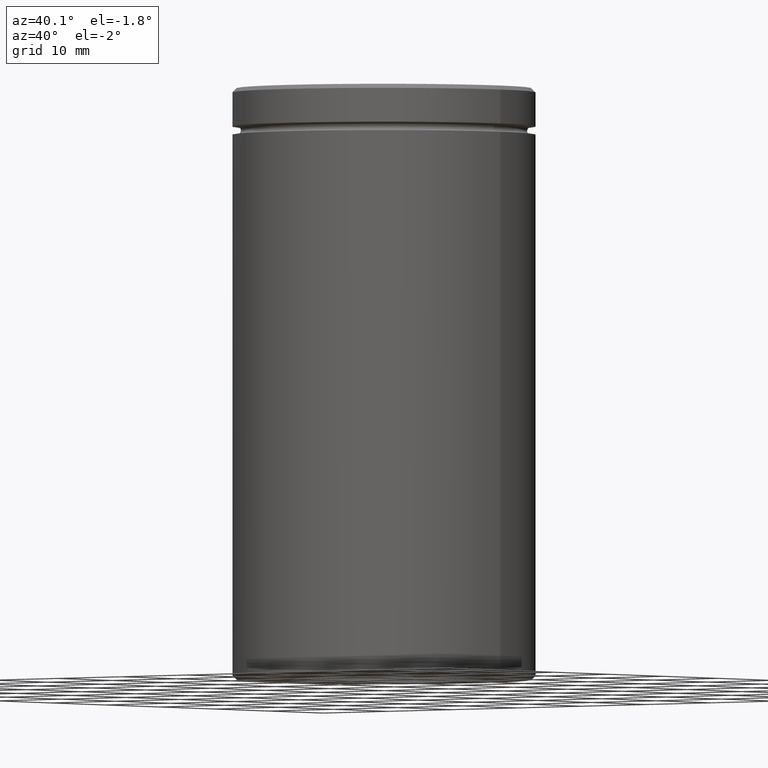
[diagram: clean part render]
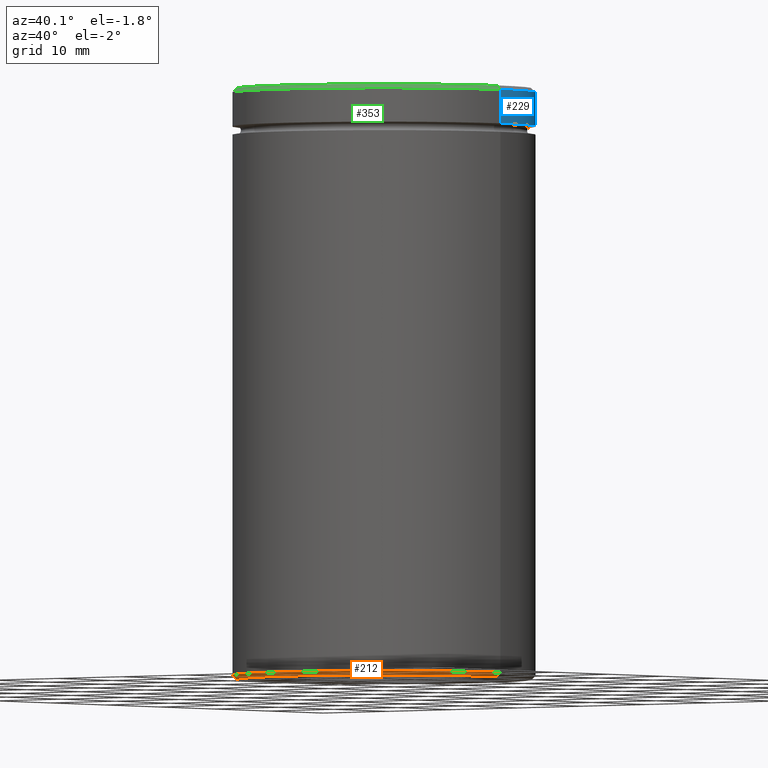
[diagram: same view with three faces highlighted in distinct colors, each labeled with its STEP entity id]
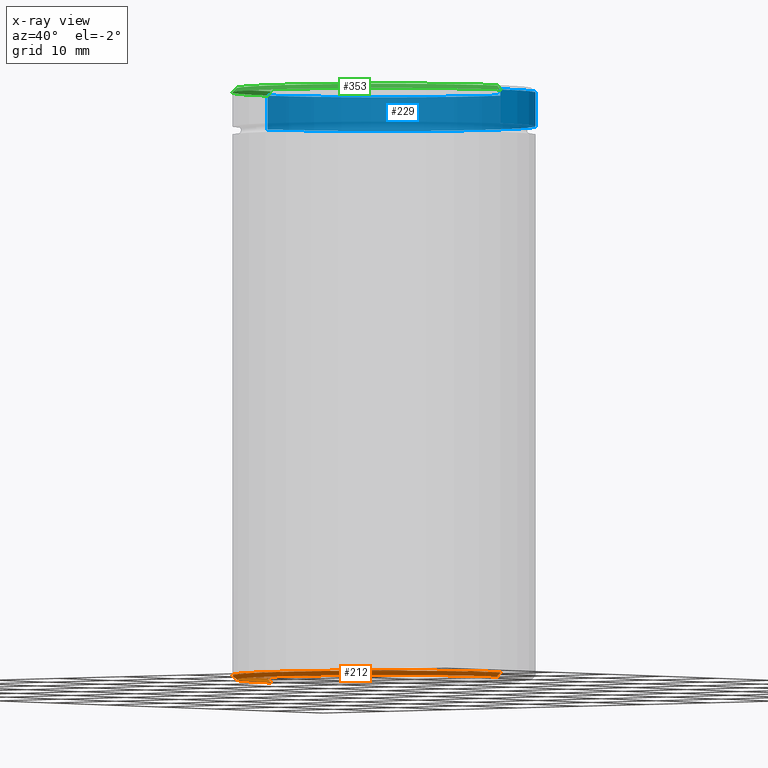
[diagram: x-ray of the same camera — body ghosted, the three highlighted faces saturated]
A machine part, auxiliary view with three faces highlighted in distinct colors.
The next image is the same camera in x-ray (body ghosted, the three faces saturated) — at least one of them is partly hidden behind the body in this view.
Their STEP definitions:

[orange] entity #212 — the highlighted conical surface has half-angle 45 deg.
#2 = EDGE_LOOP ( 'NONE', ( #20, #502, #546, #164 ) ) ;
#17 = FACE_OUTER_BOUND ( 'NONE', #2, .T. ) ;
#20 = ORIENTED_EDGE ( 'NONE', *, *, #41, .F. ) ;
#24 = CARTESIAN_POINT ( 'NONE',  ( -18.00000000000000000, 2.204364238465235428E-15, -69.50000000000001421 ) ) ;
#33 = CARTESIAN_POINT ( 'NONE',  ( 18.00000000000000000, 0.000000000000000000, -69.50000000000001421 ) ) ;
#41 = EDGE_CURVE ( 'NONE', #367, #400, #541, .T. ) ;
#74 = CIRCLE ( 'NONE', #359, 18.00000000000000000 ) ;
#84 = LINE ( 'NONE', #33, #532 ) ;
#115 = VECTOR ( 'NONE', #198, 1000.000000000000000 ) ;
#118 = VERTEX_POINT ( 'NONE', #383 ) ;
#120 = CARTESIAN_POINT ( 'NONE',  ( 18.00000000000000000, 0.000000000000000000, -69.50000000000001421 ) ) ;
#125 = EDGE_CURVE ( 'NONE', #400, #559, #74, .T. ) ;
#148 = CARTESIAN_POINT ( 'NONE',  ( -18.00000000000000000, 2.204364238465235428E-15, -69.50000000000001421 ) ) ;
#152 = CARTESIAN_POINT ( 'NONE',  ( -17.50000000000000000, 2.173748068486551641E-15, -70.00000000000000000 ) ) ;
#157 = CARTESIAN_POINT ( 'NONE',  ( 0.000000000000000000, 0.000000000000000000, -69.50000000000001421 ) ) ;
#164 = ORIENTED_EDGE ( 'NONE', *, *, #125, .F. ) ;
#195 = CIRCLE ( 'NONE', #278, 17.50000000000000000 ) ;
#198 = DIRECTION ( 'NONE',  ( -0.7071067811865549002, 8.659560562355022838E-17, 0.7071067811865401342 ) ) ;
#212 = ADVANCED_FACE ( 'NONE', ( #17 ), #296, .T. ) ;
#241 = AXIS2_PLACEMENT_3D ( 'NONE', #352, #276, #441 ) ;
#276 = DIRECTION ( 'NONE',  ( -0.000000000000000000, -0.000000000000000000, 1.000000000000000000 ) ) ;
#278 = AXIS2_PLACEMENT_3D ( 'NONE', #547, #445, #300 ) ;
#296 = CONICAL_SURFACE ( 'NONE', #241, 18.00000000000000000, 0.7853981633974587151 ) ;
#300 = DIRECTION ( 'NONE',  ( -1.000000000000000000, 0.000000000000000000, 0.000000000000000000 ) ) ;
#301 = DIRECTION ( 'NONE',  ( -1.000000000000000000, 0.000000000000000000, 0.000000000000000000 ) ) ;
#346 = EDGE_CURVE ( 'NONE', #118, #367, #195, .T. ) ;
#352 = CARTESIAN_POINT ( 'NONE',  ( 0.000000000000000000, 0.000000000000000000, -69.50000000000001421 ) ) ;
#359 = AXIS2_PLACEMENT_3D ( 'NONE', #157, #516, #301 ) ;
#367 = VERTEX_POINT ( 'NONE', #152 ) ;
#383 = CARTESIAN_POINT ( 'NONE',  ( 17.50000000000000000, 0.000000000000000000, -70.00000000000000000 ) ) ;
#400 = VERTEX_POINT ( 'NONE', #24 ) ;
#430 = EDGE_CURVE ( 'NONE', #118, #559, #84, .T. ) ;
#441 = DIRECTION ( 'NONE',  ( 1.000000000000000000, 0.000000000000000000, 0.000000000000000000 ) ) ;
#445 = DIRECTION ( 'NONE',  ( 0.000000000000000000, 0.000000000000000000, -1.000000000000000000 ) ) ;
#502 = ORIENTED_EDGE ( 'NONE', *, *, #346, .F. ) ;
#509 = DIRECTION ( 'NONE',  ( 0.7071067811865549002, 0.000000000000000000, 0.7071067811865401342 ) ) ;
#516 = DIRECTION ( 'NONE',  ( -0.000000000000000000, -0.000000000000000000, 1.000000000000000000 ) ) ;
#532 = VECTOR ( 'NONE', #509, 1000.000000000000000 ) ;
#541 = LINE ( 'NONE', #148, #115 ) ;
#546 = ORIENTED_EDGE ( 'NONE', *, *, #430, .T. ) ;
#547 = CARTESIAN_POINT ( 'NONE',  ( 0.000000000000000000, 0.000000000000000000, -70.00000000000000000 ) ) ;
#559 = VERTEX_POINT ( 'NONE', #120 ) ;

[blue] entity #229 — the highlighted cylindrical surface (partial cylindrical patch) has radius 18 mm, axis along (-0, -0, 1).
#18 = EDGE_CURVE ( 'NONE', #568, #175, #247, .T. ) ;
#19 = LINE ( 'NONE', #196, #37 ) ;
#37 = VECTOR ( 'NONE', #256, 1000.000000000000000 ) ;
#39 = CARTESIAN_POINT ( 'NONE',  ( -18.00000000000000000, 2.204364238465235428E-15, -4.500000000000000888 ) ) ;
#50 = CARTESIAN_POINT ( 'NONE',  ( 0.000000000000000000, 0.000000000000000000, 0.000000000000000000 ) ) ;
#59 = ORIENTED_EDGE ( 'NONE', *, *, #327, .F. ) ;
#63 = CARTESIAN_POINT ( 'NONE',  ( -18.00000000000000000, 2.204364238465235428E-15, 0.000000000000000000 ) ) ;
#77 = ORIENTED_EDGE ( 'NONE', *, *, #18, .T. ) ;
#92 = CARTESIAN_POINT ( 'NONE',  ( 0.000000000000000000, 0.000000000000000000, -0.5000000000000177636 ) ) ;
#96 = DIRECTION ( 'NONE',  ( 1.000000000000000000, 0.000000000000000000, 0.000000000000000000 ) ) ;
#103 = FACE_OUTER_BOUND ( 'NONE', #187, .T. ) ;
#131 = VERTEX_POINT ( 'NONE', #560 ) ;
#135 = VERTEX_POINT ( 'NONE', #343 ) ;
#149 = AXIS2_PLACEMENT_3D ( 'NONE', #92, #224, #410 ) ;
#153 = EDGE_CURVE ( 'NONE', #175, #135, #392, .T. ) ;
#175 = VERTEX_POINT ( 'NONE', #438 ) ;
#185 = CYLINDRICAL_SURFACE ( 'NONE', #557, 18.00000000000000000 ) ;
#187 = EDGE_LOOP ( 'NONE', ( #222, #77, #397, #59 ) ) ;
#196 = CARTESIAN_POINT ( 'NONE',  ( 18.00000000000000000, 0.000000000000000000, 0.000000000000000000 ) ) ;
#222 = ORIENTED_EDGE ( 'NONE', *, *, #497, .T. ) ;
#224 = DIRECTION ( 'NONE',  ( 0.000000000000000000, 0.000000000000000000, -1.000000000000000000 ) ) ;
#229 = ADVANCED_FACE ( 'NONE', ( #103 ), #185, .T. ) ;
#242 = CIRCLE ( 'NONE', #439, 18.00000000000000000 ) ;
#247 = LINE ( 'NONE', #63, #337 ) ;
#256 = DIRECTION ( 'NONE',  ( -0.000000000000000000, -0.000000000000000000, 1.000000000000000000 ) ) ;
#277 = DIRECTION ( 'NONE',  ( -0.000000000000000000, -0.000000000000000000, 1.000000000000000000 ) ) ;
#327 = EDGE_CURVE ( 'NONE', #131, #135, #19, .T. ) ;
#337 = VECTOR ( 'NONE', #277, 1000.000000000000000 ) ;
#343 = CARTESIAN_POINT ( 'NONE',  ( 18.00000000000000000, 0.000000000000000000, -0.5000000000000177636 ) ) ;
#382 = CARTESIAN_POINT ( 'NONE',  ( 0.000000000000000000, 0.000000000000000000, -4.500000000000000888 ) ) ;
#392 = CIRCLE ( 'NONE', #149, 18.00000000000000000 ) ;
#397 = ORIENTED_EDGE ( 'NONE', *, *, #153, .T. ) ;
#409 = DIRECTION ( 'NONE',  ( -0.000000000000000000, -0.000000000000000000, 1.000000000000000000 ) ) ;
#410 = DIRECTION ( 'NONE',  ( 1.000000000000000000, 0.000000000000000000, 0.000000000000000000 ) ) ;
#429 = DIRECTION ( 'NONE',  ( -0.000000000000000000, -0.000000000000000000, 1.000000000000000000 ) ) ;
#438 = CARTESIAN_POINT ( 'NONE',  ( -18.00000000000000000, 2.204364238465235428E-15, -0.5000000000000177636 ) ) ;
#439 = AXIS2_PLACEMENT_3D ( 'NONE', #382, #429, #463 ) ;
#463 = DIRECTION ( 'NONE',  ( 1.000000000000000000, 0.000000000000000000, 0.000000000000000000 ) ) ;
#497 = EDGE_CURVE ( 'NONE', #131, #568, #242, .T. ) ;
#557 = AXIS2_PLACEMENT_3D ( 'NONE', #50, #409, #96 ) ;
#560 = CARTESIAN_POINT ( 'NONE',  ( 18.00000000000000000, 0.000000000000000000, -4.500000000000000888 ) ) ;
#568 = VERTEX_POINT ( 'NONE', #39 ) ;

[green] entity #353 — the highlighted conical surface has half-angle 45 deg.
#3 = EDGE_CURVE ( 'NONE', #135, #175, #155, .T. ) ;
#30 = CONICAL_SURFACE ( 'NONE', #347, 17.49999999999998934, 0.7853981633974412846 ) ;
#36 = LINE ( 'NONE', #468, #105 ) ;
#55 = ORIENTED_EDGE ( 'NONE', *, *, #191, .F. ) ;
#56 = DIRECTION ( 'NONE',  ( -0.000000000000000000, -0.000000000000000000, 1.000000000000000000 ) ) ;
#61 = FACE_OUTER_BOUND ( 'NONE', #446, .T. ) ;
#98 = LINE ( 'NONE', #493, #264 ) ;
#99 = CARTESIAN_POINT ( 'NONE',  ( -17.49999999999998934, 0.000000000000000000, 0.000000000000000000 ) ) ;
#100 = VERTEX_POINT ( 'NONE', #99 ) ;
#105 = VECTOR ( 'NONE', #160, 999.9999999999998863 ) ;
#128 = CIRCLE ( 'NONE', #332, 17.49999999999998934 ) ;
#135 = VERTEX_POINT ( 'NONE', #343 ) ;
#144 = CARTESIAN_POINT ( 'NONE',  ( 17.49999999999998934, 2.173748068486550852E-15, 0.000000000000000000 ) ) ;
#155 = CIRCLE ( 'NONE', #240, 18.00000000000000000 ) ;
#159 = DIRECTION ( 'NONE',  ( 0.000000000000000000, 0.000000000000000000, -1.000000000000000000 ) ) ;
#160 = DIRECTION ( 'NONE',  ( -0.7071067811865425767, 0.000000000000000000, -0.7071067811865525687 ) ) ;
#168 = VERTEX_POINT ( 'NONE', #144 ) ;
#171 = CARTESIAN_POINT ( 'NONE',  ( 0.000000000000000000, 0.000000000000000000, -0.5000000000000177636 ) ) ;
#175 = VERTEX_POINT ( 'NONE', #438 ) ;
#178 = DIRECTION ( 'NONE',  ( 0.000000000000000000, 0.000000000000000000, -1.000000000000000000 ) ) ;
#182 = ORIENTED_EDGE ( 'NONE', *, *, #481, .T. ) ;
#191 = EDGE_CURVE ( 'NONE', #168, #135, #98, .T. ) ;
#237 = DIRECTION ( 'NONE',  ( 1.000000000000000000, 0.000000000000000000, 0.000000000000000000 ) ) ;
#240 = AXIS2_PLACEMENT_3D ( 'NONE', #171, #178, #521 ) ;
#259 = ORIENTED_EDGE ( 'NONE', *, *, #3, .F. ) ;
#260 = EDGE_CURVE ( 'NONE', #100, #168, #128, .T. ) ;
#264 = VECTOR ( 'NONE', #487, 999.9999999999998863 ) ;
#282 = DIRECTION ( 'NONE',  ( -1.000000000000000000, 0.000000000000000000, 0.000000000000000000 ) ) ;
#332 = AXIS2_PLACEMENT_3D ( 'NONE', #398, #56, #237 ) ;
#343 = CARTESIAN_POINT ( 'NONE',  ( 18.00000000000000000, 0.000000000000000000, -0.5000000000000177636 ) ) ;
#347 = AXIS2_PLACEMENT_3D ( 'NONE', #499, #159, #282 ) ;
#353 = ADVANCED_FACE ( 'NONE', ( #61 ), #30, .T. ) ;
#398 = CARTESIAN_POINT ( 'NONE',  ( 0.000000000000000000, 0.000000000000000000, 0.000000000000000000 ) ) ;
#426 = ORIENTED_EDGE ( 'NONE', *, *, #260, .F. ) ;
#438 = CARTESIAN_POINT ( 'NONE',  ( -18.00000000000000000, 2.204364238465235428E-15, -0.5000000000000177636 ) ) ;
#446 = EDGE_LOOP ( 'NONE', ( #55, #426, #182, #259 ) ) ;
#468 = CARTESIAN_POINT ( 'NONE',  ( -17.49999999999998934, 0.000000000000000000, 0.000000000000000000 ) ) ;
#481 = EDGE_CURVE ( 'NONE', #100, #175, #36, .T. ) ;
#487 = DIRECTION ( 'NONE',  ( 0.7071067811865425767, 8.659560562354873694E-17, -0.7071067811865525687 ) ) ;
#493 = CARTESIAN_POINT ( 'NONE',  ( 17.49999999999998934, 2.143131898507866276E-15, 0.000000000000000000 ) ) ;
#499 = CARTESIAN_POINT ( 'NONE',  ( 0.000000000000000000, 0.000000000000000000, 0.000000000000000000 ) ) ;
#521 = DIRECTION ( 'NONE',  ( 1.000000000000000000, 0.000000000000000000, 0.000000000000000000 ) ) ;